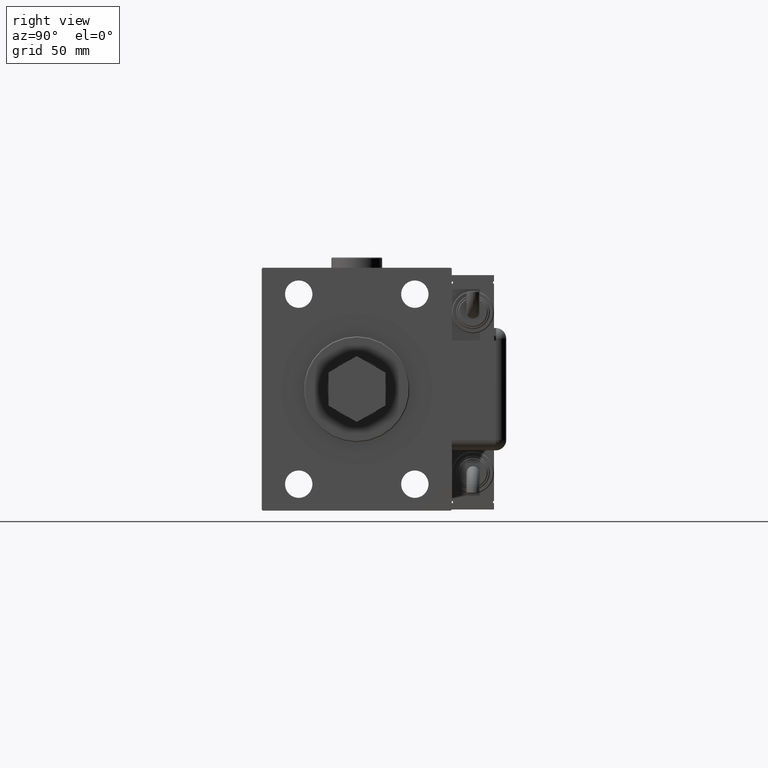
[diagram: clean part render]
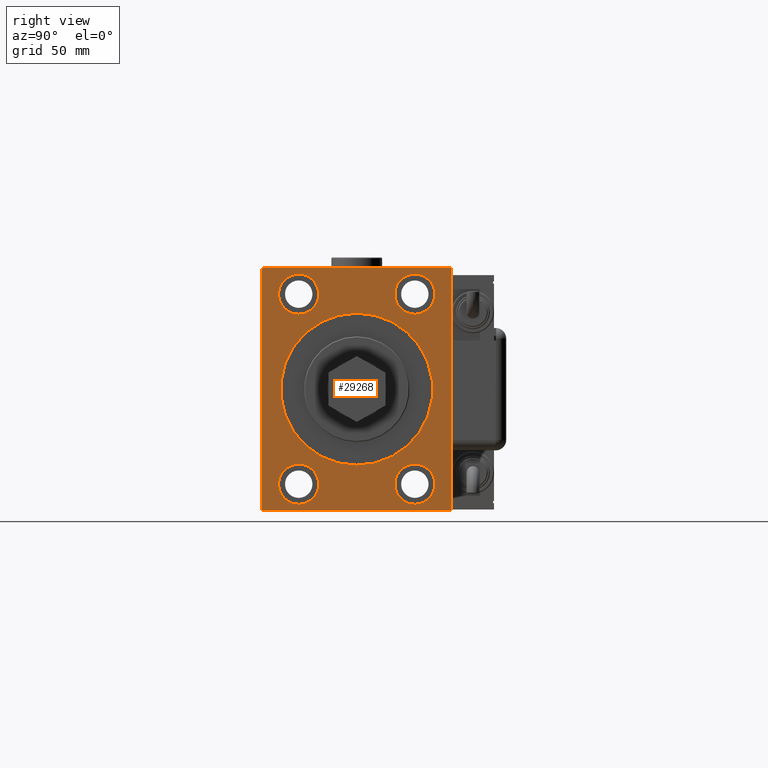
[diagram: same view with one face highlighted and labeled with its STEP entity id]
A machine part, right view. The second image highlights one B-rep face of the part: STEP entity #29268.
In plain terms, the highlighted planar face has unit normal (1, 0, 0).
Its self-contained STEP definition (entity closure, byte-faithful):
#631 = AXIS2_PLACEMENT_3D ( 'NONE', #12160, #49083, #44341 ) ;
#837 = CARTESIAN_POINT ( 'NONE',  ( 119.7000000000000028, 44.49999999999995737, -57.50000000000001421 ) ) ;
#1054 = DIRECTION ( 'NONE',  ( 0.000000000000000000, -1.000000000000000000, -1.541976423090495633E-16 ) ) ;
#2189 = CIRCLE ( 'NONE', #28337, 9.500000000000001776 ) ;
#2301 = VERTEX_POINT ( 'NONE', #50467 ) ;
#2857 = CARTESIAN_POINT ( 'NONE',  ( 119.7000000000000028, 50.99999999999938893, -51.00000000000080291 ) ) ;
#3650 = ORIENTED_EDGE ( 'NONE', *, *, #57795, .T. ) ;
#4743 = EDGE_CURVE ( 'NONE', #41238, #26365, #30785, .T. ) ;
#5122 = CIRCLE ( 'NONE', #44536, 9.500000000000001776 ) ;
#5768 = ORIENTED_EDGE ( 'NONE', *, *, #59441, .F. ) ;
#5795 = LINE ( 'NONE', #31850, #44007 ) ;
#5962 = CARTESIAN_POINT ( 'NONE',  ( 119.7000000000000028, 51.00000000000000000, 51.00000000000000000 ) ) ;
#6683 = CARTESIAN_POINT ( 'NONE',  ( 119.7000000000000028, 44.50000000000001421, 57.50000000000000000 ) ) ;
#7118 = DIRECTION ( 'NONE',  ( -1.000000000000000000, -0.000000000000000000, -0.000000000000000000 ) ) ;
#8500 = DIRECTION ( 'NONE',  ( 1.000000000000000000, 0.000000000000000000, 0.000000000000000000 ) ) ;
#9798 = CARTESIAN_POINT ( 'NONE',  ( 119.7000000000000028, -51.00000000000001421, -51.00000000000001421 ) ) ;
#10434 = AXIS2_PLACEMENT_3D ( 'NONE', #15313, #20671, #34851 ) ;
#10678 = EDGE_CURVE ( 'NONE', #54713, #11110, #48158, .T. ) ;
#10740 = EDGE_CURVE ( 'NONE', #19589, #46251, #45755, .T. ) ;
#10812 = CARTESIAN_POINT ( 'NONE',  ( 119.7000000000000028, 44.99999999999998579, 57.00000000000000000 ) ) ;
#11110 = VERTEX_POINT ( 'NONE', #57603 ) ;
#11820 = ORIENTED_EDGE ( 'NONE', *, *, #4743, .T. ) ;
#12013 = VERTEX_POINT ( 'NONE', #28643 ) ;
#12160 = CARTESIAN_POINT ( 'NONE',  ( 119.7000000000000028, 27.50000000000000000, -45.00000000000000000 ) ) ;
#12304 = CIRCLE ( 'NONE', #30436, 36.00000000000000000 ) ;
#13016 = CARTESIAN_POINT ( 'NONE',  ( 119.7000000000000028, -27.50000000000000000, -45.00000000000000000 ) ) ;
#13313 = DIRECTION ( 'NONE',  ( 0.000000000000000000, -0.7071067811865474617, -0.7071067811865474617 ) ) ;
#14055 = DIRECTION ( 'NONE',  ( -1.000000000000000000, -0.000000000000000000, -0.000000000000000000 ) ) ;
#14259 = CARTESIAN_POINT ( 'NONE',  ( 119.7000000000000028, 45.00000000000000000, -57.50000000000001421 ) ) ;
#14462 = VECTOR ( 'NONE', #13313, 1000.000000000000114 ) ;
#14562 = CARTESIAN_POINT ( 'NONE',  ( 119.7000000000000028, -27.50000000000000000, 45.00000000000000000 ) ) ;
#15313 = CARTESIAN_POINT ( 'NONE',  ( 119.7000000000000028, 0.000000000000000000, 0.000000000000000000 ) ) ;
#15911 = VERTEX_POINT ( 'NONE', #30073 ) ;
#16526 = EDGE_LOOP ( 'NONE', ( #49976, #21043 ) ) ;
#16785 = DIRECTION ( 'NONE',  ( 0.000000000000000000, 0.000000000000000000, 1.000000000000000000 ) ) ;
#17501 = VERTEX_POINT ( 'NONE', #33224 ) ;
#17979 = FACE_BOUND ( 'NONE', #16526, .T. ) ;
#18458 = VECTOR ( 'NONE', #59880, 1000.000000000000000 ) ;
#18589 = FACE_BOUND ( 'NONE', #54843, .T. ) ;
#18663 = CARTESIAN_POINT ( 'NONE',  ( 119.7000000000000028, -51.00000000000000711, 51.00000000000000711 ) ) ;
#18896 = DIRECTION ( 'NONE',  ( -0.000000000000000000, -0.7071067811865474617, 0.7071067811865474617 ) ) ;
#18901 = FACE_OUTER_BOUND ( 'NONE', #57612, .T. ) ;
#18962 = ORIENTED_EDGE ( 'NONE', *, *, #62070, .T. ) ;
#18989 = ORIENTED_EDGE ( 'NONE', *, *, #59361, .T. ) ;
#19173 = DIRECTION ( 'NONE',  ( -1.000000000000000000, -0.000000000000000000, -0.000000000000000000 ) ) ;
#19206 = EDGE_LOOP ( 'NONE', ( #11820, #34421 ) ) ;
#19407 = VECTOR ( 'NONE', #28724, 1000.000000000000114 ) ;
#19589 = VERTEX_POINT ( 'NONE', #837 ) ;
#19832 = CIRCLE ( 'NONE', #25894, 9.500000000000001776 ) ;
#20242 = LINE ( 'NONE', #14259, #53569 ) ;
#20550 = DIRECTION ( 'NONE',  ( 0.000000000000000000, 0.000000000000000000, 1.000000000000000000 ) ) ;
#20671 = DIRECTION ( 'NONE',  ( 1.000000000000000000, 0.000000000000000000, 0.000000000000000000 ) ) ;
#20867 = DIRECTION ( 'NONE',  ( -0.000000000000000000, 0.7071067811865574537, 0.7071067811865376918 ) ) ;
#21043 = ORIENTED_EDGE ( 'NONE', *, *, #27664, .T. ) ;
#21217 = ORIENTED_EDGE ( 'NONE', *, *, #54894, .T. ) ;
#21525 = VECTOR ( 'NONE', #30429, 1000.000000000000000 ) ;
#22890 = ORIENTED_EDGE ( 'NONE', *, *, #34692, .T. ) ;
#23385 = DIRECTION ( 'NONE',  ( -1.000000000000000000, -0.000000000000000000, -0.000000000000000000 ) ) ;
#24313 = ORIENTED_EDGE ( 'NONE', *, *, #10740, .T. ) ;
#24554 = LINE ( 'NONE', #5962, #30702 ) ;
#24956 = DIRECTION ( 'NONE',  ( 0.000000000000000000, -1.206764157201257045E-16, 1.000000000000000000 ) ) ;
#25894 = AXIS2_PLACEMENT_3D ( 'NONE', #40246, #7118, #35814 ) ;
#25970 = DIRECTION ( 'NONE',  ( 1.000000000000000000, 0.000000000000000000, 0.000000000000000000 ) ) ;
#26365 = VERTEX_POINT ( 'NONE', #33585 ) ;
#26381 = ORIENTED_EDGE ( 'NONE', *, *, #10678, .T. ) ;
#26443 = CARTESIAN_POINT ( 'NONE',  ( 119.7000000000000028, -45.00000000000000000, 57.49999999999998579 ) ) ;
#27378 = CARTESIAN_POINT ( 'NONE',  ( 119.7000000000000028, 45.00000000000000000, -57.00000000000001421 ) ) ;
#27664 = EDGE_CURVE ( 'NONE', #12013, #49877, #30585, .T. ) ;
#28337 = AXIS2_PLACEMENT_3D ( 'NONE', #13016, #23385, #57127 ) ;
#28643 = CARTESIAN_POINT ( 'NONE',  ( 119.7000000000000028, 27.50000000000000000, -54.50000000000000000 ) ) ;
#28724 = DIRECTION ( 'NONE',  ( -0.000000000000000000, 0.7071067811865474617, -0.7071067811865474617 ) ) ;
#29115 = EDGE_CURVE ( 'NONE', #26365, #41238, #36703, .T. ) ;
#29233 = ORIENTED_EDGE ( 'NONE', *, *, #49422, .T. ) ;
#29268 = ADVANCED_FACE ( 'NONE', ( #17979, #61771, #42551, #46675, #18589, #18901 ), #41943, .T. ) ;
#29401 = ORIENTED_EDGE ( 'NONE', *, *, #50421, .F. ) ;
#30073 = CARTESIAN_POINT ( 'NONE',  ( 119.7000000000000028, -44.50000000000002842, -57.50000000000001421 ) ) ;
#30142 = VERTEX_POINT ( 'NONE', #51718 ) ;
#30429 = DIRECTION ( 'NONE',  ( 0.000000000000000000, 1.000000000000000000, 0.000000000000000000 ) ) ;
#30436 = AXIS2_PLACEMENT_3D ( 'NONE', #40484, #25970, #60022 ) ;
#30585 = CIRCLE ( 'NONE', #38631, 9.500000000000001776 ) ;
#30702 = VECTOR ( 'NONE', #18896, 1000.000000000000114 ) ;
#30785 = CIRCLE ( 'NONE', #37825, 9.500000000000001776 ) ;
#31850 = CARTESIAN_POINT ( 'NONE',  ( 119.7000000000000028, 44.99999999999998579, 57.50000000000000000 ) ) ;
#32265 = VERTEX_POINT ( 'NONE', #57600 ) ;
#33224 = CARTESIAN_POINT ( 'NONE',  ( 119.7000000000000028, 4.408728476930470856E-15, 36.00000000000000000 ) ) ;
#33585 = CARTESIAN_POINT ( 'NONE',  ( 119.7000000000000028, -27.50000000000000000, 35.50000000000000000 ) ) ;
#34421 = ORIENTED_EDGE ( 'NONE', *, *, #29115, .T. ) ;
#34456 = EDGE_CURVE ( 'NONE', #49877, #12013, #35899, .T. ) ;
#34692 = EDGE_CURVE ( 'NONE', #42712, #32265, #5795, .T. ) ;
#34851 = DIRECTION ( 'NONE',  ( 0.000000000000000000, 0.000000000000000000, -1.000000000000000000 ) ) ;
#35245 = EDGE_CURVE ( 'NONE', #11110, #54713, #19832, .T. ) ;
#35562 = CARTESIAN_POINT ( 'NONE',  ( 119.7000000000000028, -45.00000000000000000, -57.00000000000004263 ) ) ;
#35701 = CARTESIAN_POINT ( 'NONE',  ( 119.7000000000000028, 27.50000000000000000, -45.00000000000000000 ) ) ;
#35814 = DIRECTION ( 'NONE',  ( 0.000000000000000000, 0.000000000000000000, 1.000000000000000000 ) ) ;
#35899 = CIRCLE ( 'NONE', #631, 9.500000000000001776 ) ;
#36703 = CIRCLE ( 'NONE', #40764, 9.500000000000001776 ) ;
#37030 = LINE ( 'NONE', #9798, #19407 ) ;
#37197 = CARTESIAN_POINT ( 'NONE',  ( 119.7000000000000028, 0.000000000000000000, 0.000000000000000000 ) ) ;
#37614 = CIRCLE ( 'NONE', #10434, 36.00000000000000000 ) ;
#37825 = AXIS2_PLACEMENT_3D ( 'NONE', #38396, #19173, #57012 ) ;
#38001 = CARTESIAN_POINT ( 'NONE',  ( 119.7000000000000028, -27.50000000000000000, -45.00000000000000000 ) ) ;
#38396 = CARTESIAN_POINT ( 'NONE',  ( 119.7000000000000028, -27.50000000000000000, 45.00000000000000000 ) ) ;
#38631 = AXIS2_PLACEMENT_3D ( 'NONE', #35701, #45477, #16785 ) ;
#38826 = DIRECTION ( 'NONE',  ( 0.000000000000000000, 0.000000000000000000, 1.000000000000000000 ) ) ;
#39047 = VECTOR ( 'NONE', #20867, 999.9999999999998863 ) ;
#40246 = CARTESIAN_POINT ( 'NONE',  ( 119.7000000000000028, 27.50000000000000000, 45.00000000000000000 ) ) ;
#40484 = CARTESIAN_POINT ( 'NONE',  ( 119.7000000000000028, 0.000000000000000000, 0.000000000000000000 ) ) ;
#40764 = AXIS2_PLACEMENT_3D ( 'NONE', #14562, #48930, #20550 ) ;
#41238 = VERTEX_POINT ( 'NONE', #45192 ) ;
#41943 = PLANE ( 'NONE',  #58902 ) ;
#42551 = FACE_BOUND ( 'NONE', #44797, .T. ) ;
#42712 = VERTEX_POINT ( 'NONE', #6683 ) ;
#44007 = VECTOR ( 'NONE', #1054, 1000.000000000000000 ) ;
#44321 = CARTESIAN_POINT ( 'NONE',  ( 119.7000000000000028, -45.00000000000000000, -57.50000000000001421 ) ) ;
#44341 = DIRECTION ( 'NONE',  ( 0.000000000000000000, 0.000000000000000000, 1.000000000000000000 ) ) ;
#44518 = CARTESIAN_POINT ( 'NONE',  ( 119.7000000000000028, 27.50000000000000000, 45.00000000000000000 ) ) ;
#44536 = AXIS2_PLACEMENT_3D ( 'NONE', #38001, #14055, #61648 ) ;
#44797 = EDGE_LOOP ( 'NONE', ( #26381, #46804 ) ) ;
#45192 = CARTESIAN_POINT ( 'NONE',  ( 119.7000000000000028, -27.50000000000000000, 54.50000000000000000 ) ) ;
#45246 = LINE ( 'NONE', #44321, #21525 ) ;
#45477 = DIRECTION ( 'NONE',  ( -1.000000000000000000, -0.000000000000000000, -0.000000000000000000 ) ) ;
#45755 = LINE ( 'NONE', #2857, #39047 ) ;
#46251 = VERTEX_POINT ( 'NONE', #27378 ) ;
#46675 = FACE_BOUND ( 'NONE', #19206, .T. ) ;
#46804 = ORIENTED_EDGE ( 'NONE', *, *, #35245, .T. ) ;
#47589 = VERTEX_POINT ( 'NONE', #35562 ) ;
#48158 = CIRCLE ( 'NONE', #55180, 9.500000000000001776 ) ;
#48930 = DIRECTION ( 'NONE',  ( -1.000000000000000000, -0.000000000000000000, -0.000000000000000000 ) ) ;
#49083 = DIRECTION ( 'NONE',  ( -1.000000000000000000, -0.000000000000000000, -0.000000000000000000 ) ) ;
#49422 = EDGE_CURVE ( 'NONE', #2301, #58821, #2189, .T. ) ;
#49560 = EDGE_CURVE ( 'NONE', #46251, #52207, #20242, .T. ) ;
#49877 = VERTEX_POINT ( 'NONE', #55381 ) ;
#49976 = ORIENTED_EDGE ( 'NONE', *, *, #34456, .T. ) ;
#50421 = EDGE_CURVE ( 'NONE', #17501, #59659, #12304, .T. ) ;
#50467 = CARTESIAN_POINT ( 'NONE',  ( 119.7000000000000028, -27.50000000000000000, -35.50000000000000000 ) ) ;
#50735 = LINE ( 'NONE', #26443, #18458 ) ;
#51104 = EDGE_CURVE ( 'NONE', #58821, #2301, #5122, .T. ) ;
#51718 = CARTESIAN_POINT ( 'NONE',  ( 119.7000000000000028, -45.00000000000000000, 57.00000000000001421 ) ) ;
#52207 = VERTEX_POINT ( 'NONE', #10812 ) ;
#52809 = ORIENTED_EDGE ( 'NONE', *, *, #49560, .T. ) ;
#53410 = CARTESIAN_POINT ( 'NONE',  ( 119.7000000000000028, 27.50000000000000000, 54.50000000000000000 ) ) ;
#53569 = VECTOR ( 'NONE', #24956, 1000.000000000000000 ) ;
#53885 = EDGE_CURVE ( 'NONE', #47589, #15911, #37030, .T. ) ;
#54144 = ORIENTED_EDGE ( 'NONE', *, *, #51104, .T. ) ;
#54713 = VERTEX_POINT ( 'NONE', #53410 ) ;
#54843 = EDGE_LOOP ( 'NONE', ( #5768, #29401 ) ) ;
#54894 = EDGE_CURVE ( 'NONE', #32265, #30142, #56204, .T. ) ;
#55180 = AXIS2_PLACEMENT_3D ( 'NONE', #44518, #57444, #38826 ) ;
#55381 = CARTESIAN_POINT ( 'NONE',  ( 119.7000000000000028, 27.50000000000000000, -35.50000000000000000 ) ) ;
#55640 = EDGE_LOOP ( 'NONE', ( #29233, #54144 ) ) ;
#56204 = LINE ( 'NONE', #18663, #14462 ) ;
#56394 = CARTESIAN_POINT ( 'NONE',  ( 119.7000000000000028, -27.50000000000000000, -54.50000000000000000 ) ) ;
#56740 = DIRECTION ( 'NONE',  ( 0.000000000000000000, 0.000000000000000000, -1.000000000000000000 ) ) ;
#57012 = DIRECTION ( 'NONE',  ( 0.000000000000000000, 0.000000000000000000, 1.000000000000000000 ) ) ;
#57127 = DIRECTION ( 'NONE',  ( 0.000000000000000000, 0.000000000000000000, 1.000000000000000000 ) ) ;
#57444 = DIRECTION ( 'NONE',  ( -1.000000000000000000, -0.000000000000000000, -0.000000000000000000 ) ) ;
#57600 = CARTESIAN_POINT ( 'NONE',  ( 119.7000000000000028, -44.50000000000000000, 57.49999999999998579 ) ) ;
#57603 = CARTESIAN_POINT ( 'NONE',  ( 119.7000000000000028, 27.50000000000000000, 35.50000000000000000 ) ) ;
#57612 = EDGE_LOOP ( 'NONE', ( #22890, #21217, #3650, #61468, #18989, #24313, #52809, #18962 ) ) ;
#57795 = EDGE_CURVE ( 'NONE', #30142, #47589, #50735, .T. ) ;
#58821 = VERTEX_POINT ( 'NONE', #56394 ) ;
#58902 = AXIS2_PLACEMENT_3D ( 'NONE', #37197, #8500, #56740 ) ;
#59040 = CARTESIAN_POINT ( 'NONE',  ( 119.7000000000000028, 0.000000000000000000, -36.00000000000000000 ) ) ;
#59361 = EDGE_CURVE ( 'NONE', #15911, #19589, #45246, .T. ) ;
#59441 = EDGE_CURVE ( 'NONE', #59659, #17501, #37614, .T. ) ;
#59659 = VERTEX_POINT ( 'NONE', #59040 ) ;
#59880 = DIRECTION ( 'NONE',  ( 0.000000000000000000, 0.000000000000000000, -1.000000000000000000 ) ) ;
#60022 = DIRECTION ( 'NONE',  ( 0.000000000000000000, 0.000000000000000000, -1.000000000000000000 ) ) ;
#61468 = ORIENTED_EDGE ( 'NONE', *, *, #53885, .T. ) ;
#61648 = DIRECTION ( 'NONE',  ( 0.000000000000000000, 0.000000000000000000, 1.000000000000000000 ) ) ;
#61771 = FACE_BOUND ( 'NONE', #55640, .T. ) ;
#62070 = EDGE_CURVE ( 'NONE', #52207, #42712, #24554, .T. ) ;